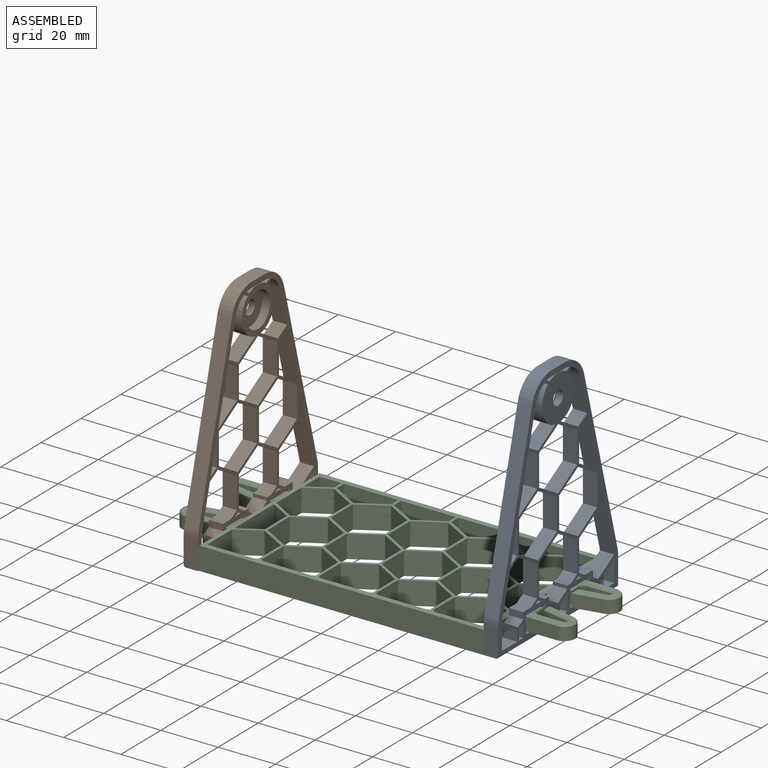
[diagram: assembled view]
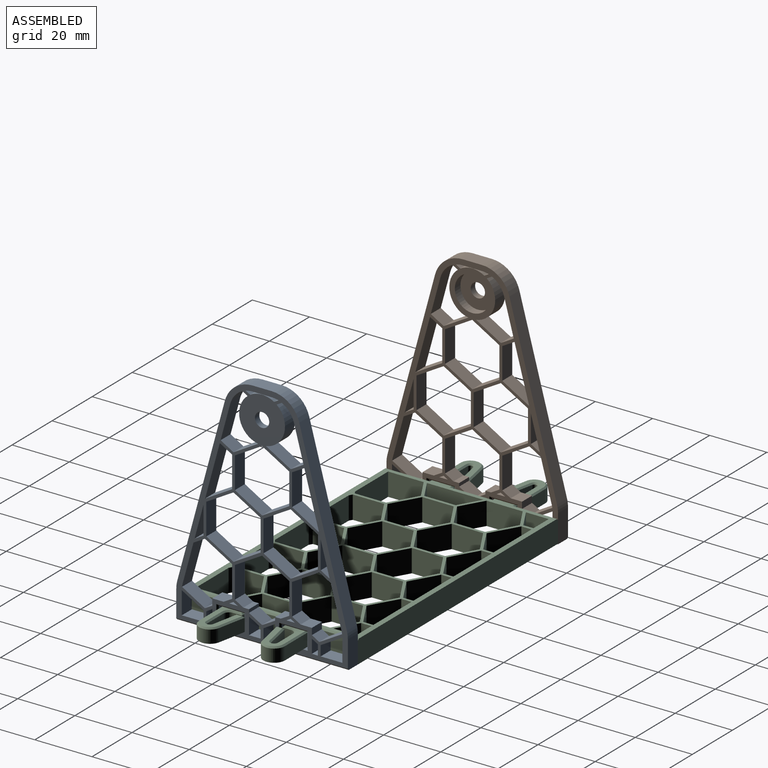
[diagram: assembled view, second angle]
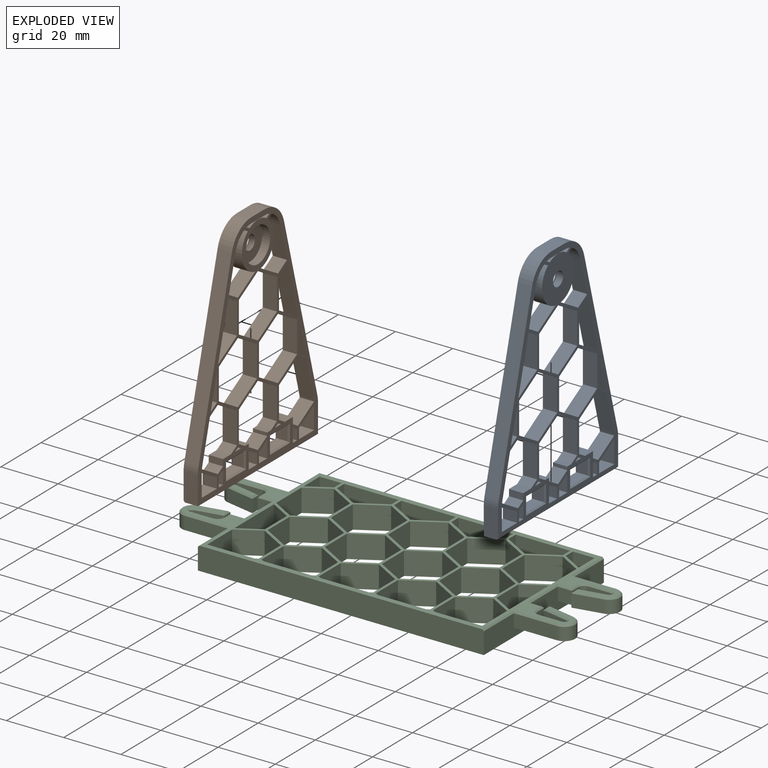
[diagram: exploded view]
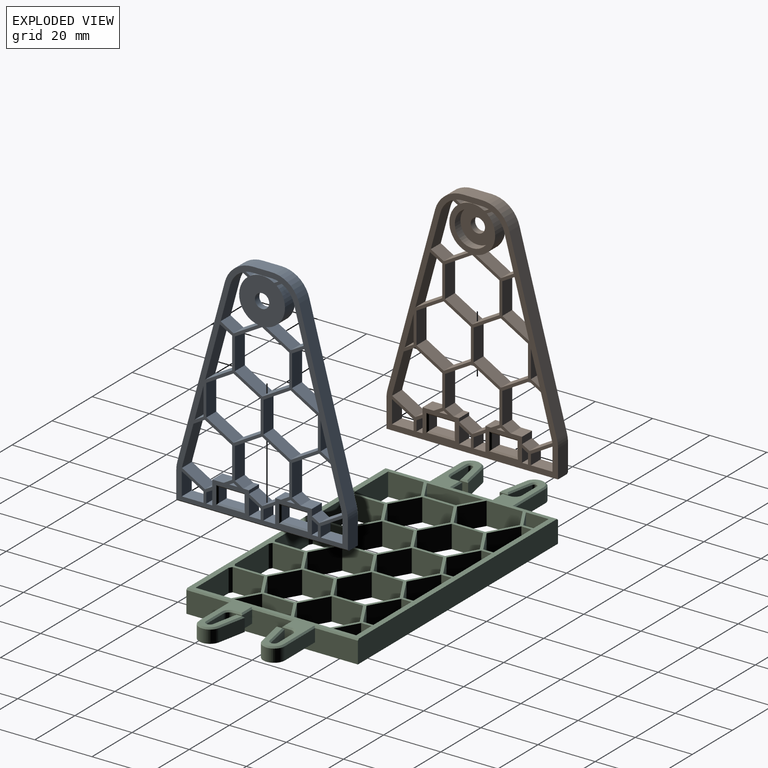
[diagram: exploded view, second angle]
ASSEMBLY  parts=3 mates=3
PART A: 154 faces, bbox 60x81.2x5 mm
  f0: plane 8.65x5mm, normal (0.5,0.87,0), area 49.9mm2, adj f24,f31,f35,f136
  f1: plane 5x1.82mm, normal (-0.5,-0.87,0), area 10.5mm2, adj f24,f41,f43,f136
  f2: plane 5x1.53mm, normal (-0.5,0.87,0), area 8.9mm2, adj f24,f37,f39,f136
  f3: plane 9.87x5mm, normal (1,0,0), area 49.2mm2, adj f8,f18,f24,f136,f137
  f4: plane 61.33x16.65mm, normal (0.97,0.26,0), area 317.8mm2, adj f18,f20,f24,f136
  f5: plane 6.71x5mm, normal (0,1,0), area 33.5mm2, adj f20,f21,f24,f136
  f6: plane 61.33x16.65mm, normal (-0.97,0.26,0), area 317.8mm2, adj f19,f21,f24,f136
  f7: plane 9.87x5mm, normal (-1,0,0), area 49.2mm2, adj f8,f19,f24,f136,f137
  f8: plane 60x4.5mm, normal (0,-1,0), area 270mm2, adj f3,f7,f24,f137
  f9: plane 9x4mm, normal (0,-1,0), area 36mm2, adj f10,f15,f143,f151
  f10: plane 5.2x4mm, normal (-1,0,0), area 20.8mm2, adj f9,f11,f145,f153
  f11: plane 9x4mm, normal (0,1,0), area 36mm2, adj f10,f15,f144,f152
  f12: plane 5.2x4mm, normal (1,0,0), area 20.8mm2, adj f13,f16,f139,f146
  f13: plane 9x4mm, normal (0,-1,0), area 36mm2, adj f12,f14,f138,f147
  f14: plane 5.2x4mm, normal (-1,0,0), area 20.8mm2, adj f13,f16,f140,f149
  f15: plane 5.2x4mm, normal (1,0,0), area 20.8mm2, adj f9,f11,f142,f150
  f16: plane 9x4mm, normal (0,1,0), area 36mm2, adj f12,f14,f141,f148
  f17: cylinder r=6.1mm len=12.2mm, axis (0,0,1), area 107.3mm2, adj f23,f24
  f18: cylinder r=10mm len=5mm, axis (0,0,-1), area 13.3mm2, adj f3,f4,f24,f136
  f19: cylinder r=10mm len=5mm, axis (0,0,1), area 13.3mm2, adj f6,f7,f24,f136
  f20: cylinder r=10mm len=9.65mm, axis (0,0,-1), area 65.3mm2, adj f4,f5,f24,f136
  f21: cylinder r=10mm len=9.65mm, axis (0,0,-1), area 65.3mm2, adj f5,f6,f24,f136
  f22: cylinder r=2.5mm len=5mm, axis (0,0,1), area 34.6mm2, adj f23,f136
  f23: plane 12.2x12.2mm, normal (0,0,1), area 97.3mm2, adj f17,f22
  f24: plane 81.2x60mm, normal (0,0,1), area 892.8mm2, adj f0,f1,f2,f3,f4,f5,f6,f7
  f25: plane 9.51x5.49mm, normal (-0.5,0.87,0), area 54.9mm2, adj f24,f26,f30,f136
  f26: plane 10.98x5mm, normal (-1,0,0), area 54.9mm2, adj f24,f25,f27,f136
  f27: plane 9.51x5.49mm, normal (-0.5,-0.87,0), area 54.9mm2, adj f24,f26,f28,f136
  f28: plane 9.51x5.49mm, normal (0.5,-0.87,0), area 54.9mm2, adj f24,f27,f29,f136
  f29: plane 10.98x5mm, normal (1,0,0), area 54.9mm2, adj f24,f28,f30,f136
  f30: plane 9.51x5.49mm, normal (0.5,0.87,0), area 54.9mm2, adj f24,f25,f29,f136
  f31: cylinder r=8.02mm len=14.12mm, axis (0,0,1), area 91.8mm2, adj f0,f24,f34,f136
  f32: plane 12.41x5mm, normal (-0.97,-0.26,0), area 64.3mm2, adj f24,f33,f35,f136
  f33: cylinder r=8.08mm len=5.15mm, axis (0,0,-1), area 34.5mm2, adj f24,f32,f34,f136
  f34: plane 5x1.82mm, normal (0.5,-0.87,0), area 10.5mm2, adj f24,f31,f33,f136
  f35: plane 5x4.52mm, normal (-0.5,0.87,0), area 26.1mm2, adj f0,f24,f32,f136
  f36: plane 6.71x5mm, normal (0,-1,0), area 33.5mm2, adj f24,f38,f39,f136
  f37: cylinder r=8.02mm len=8.38mm, axis (0,0,1), area 44.1mm2, adj f2,f24,f40,f136
  f38: cylinder r=8.08mm len=5mm, axis (0,0,-1), area 12mm2, adj f24,f36,f40,f136
  f39: cylinder r=8.08mm len=5mm, axis (0,0,-1), area 12mm2, adj f2,f24,f36,f136
  f40: plane 5x1.53mm, normal (0.5,0.87,0), area 8.9mm2, adj f24,f37,f38,f136
  f41: cylinder r=8.08mm len=5.15mm, axis (0,0,-1), area 34.5mm2, adj f1,f24,f42,f136
  f42: plane 12.41x5mm, normal (0.97,-0.26,0), area 64.3mm2, adj f24,f41,f44,f136
  f43: cylinder r=8.02mm len=14.12mm, axis (0,0,1), area 91.8mm2, adj f1,f24,f45,f136
  f44: plane 5x4.52mm, normal (0.5,0.87,0), area 26.1mm2, adj f24,f42,f45,f136
  f45: plane 8.65x5mm, normal (-0.5,0.87,0), area 49.9mm2, adj f24,f43,f44,f136
  f46: plane 5x2.29mm, normal (-1,0,0), area 11.5mm2, adj f24,f47,f51,f136
  f47: plane 5x3.97mm, normal (0,1,0), area 19.8mm2, adj f24,f46,f52,f136
  f48: cylinder r=8.08mm len=5mm, axis (0,0,1), area 5.2mm2, adj f24,f49,f50,f136
  f49: plane 14.01x5mm, normal (0.97,-0.26,0), area 72.6mm2, adj f24,f48,f53,f136
  f50: plane 8.01x5mm, normal (0.5,0.87,0), area 46.2mm2, adj f24,f48,f51,f136
  f51: plane 5x2.58mm, normal (-0.5,0.87,0), area 14.9mm2, adj f24,f46,f50,f136
  f52: plane 5x2.96mm, normal (-0.5,0.87,0), area 17.1mm2, adj f24,f47,f55,f136
  f53: plane 5x3.99mm, normal (0.5,-0.87,0), area 23.1mm2, adj f24,f49,f54,f136
  f54: plane 9.51x5.49mm, normal (-0.5,-0.87,0), area 54.9mm2, adj f24,f53,f55,f136
  f55: plane 10.98x5mm, normal (-1,0,0), area 54.9mm2, adj f24,f52,f54,f136
  f56: plane 7.95x5mm, normal (1,0,0), area 39.7mm2, adj f24,f57,f58,f136
  f57: plane 7.59x5mm, normal (0,1,0), area 37.9mm2, adj f24,f56,f60,f136
  f58: cylinder r=8.08mm len=5mm, axis (0,0,1), area 0mm2, adj f24,f56,f59,f136
  f59: plane 7.59x5mm, normal (-0.5,-0.87,0), area 43.8mm2, adj f24,f58,f60,f136
  f60: plane 5x3.57mm, normal (-1,0,0), area 17.9mm2, adj f24,f57,f59,f136
  f61: plane 5x2.29mm, normal (1,0,0), area 11.5mm2, adj f24,f62,f66,f136
  f62: plane 5x3.97mm, normal (0,1,0), area 19.8mm2, adj f24,f61,f68,f136
  f63: cylinder r=8.08mm len=5mm, axis (0,0,-1), area 5.2mm2, adj f24,f64,f65,f136
  f64: plane 14.01x5mm, normal (-0.97,-0.26,0), area 72.6mm2, adj f24,f63,f67,f136
  f65: plane 8.01x5mm, normal (-0.5,0.87,0), area 46.2mm2, adj f24,f63,f66,f136
  f66: plane 5x2.58mm, normal (0.5,0.87,0), area 14.9mm2, adj f24,f61,f65,f136
  f67: plane 5x3.99mm, normal (-0.5,-0.87,0), area 23.1mm2, adj f24,f64,f70,f136
  f68: plane 5x2.96mm, normal (0.5,0.87,0), area 17.1mm2, adj f24,f62,f69,f136
  f69: plane 10.98x5mm, normal (1,0,0), area 54.9mm2, adj f24,f68,f70,f136
  f70: plane 9.51x5.49mm, normal (0.5,-0.87,0), area 54.9mm2, adj f24,f67,f69,f136
  f71: plane 7.95x5mm, normal (-1,0,0), area 39.7mm2, adj f24,f72,f73,f136
  f72: cylinder r=8.08mm len=5mm, axis (0,0,-1), area 0mm2, adj f24,f71,f74,f136
  f73: plane 7.59x5mm, normal (0,1,0), area 37.9mm2, adj f24,f71,f75,f136
  f74: plane 7.59x5mm, normal (0.5,-0.87,0), area 43.8mm2, adj f24,f72,f75,f136
  f75: plane 5x3.57mm, normal (1,0,0), area 17.9mm2, adj f24,f73,f74,f136
  f76: plane 5x2.09mm, normal (0,1,0), area 10.4mm2, adj f24,f77,f78,f136
  f77: plane 5x4.78mm, normal (-1,0,0), area 23.9mm2, adj f24,f76,f79,f136
  f78: plane 5x3.57mm, normal (1,0,0), area 17.9mm2, adj f24,f76,f79,f136
  f79: plane 5x2.09mm, normal (0.5,-0.87,0), area 12.1mm2, adj f24,f77,f78,f136
  f80: plane 5x2.09mm, normal (-0.5,-0.87,0), area 12.1mm2, adj f24,f81,f82,f136
  f81: plane 5x3.57mm, normal (-1,0,0), area 17.9mm2, adj f24,f80,f83,f136
  f82: plane 5x4.78mm, normal (1,0,0), area 23.9mm2, adj f24,f80,f83,f136
  f83: plane 5x2.09mm, normal (0,1,0), area 10.4mm2, adj f24,f81,f82,f136
  f84: plane 5x2.96mm, normal (-0.5,0.87,0), area 17.1mm2, adj f24,f89,f92,f136
  f85: plane 5x2.96mm, normal (0.5,0.87,0), area 17.1mm2, adj f24,f86,f91,f136
  f86: plane 10.98x5mm, normal (1,0,0), area 54.9mm2, adj f24,f85,f87,f136
  f87: plane 9.51x5.49mm, normal (0.5,-0.87,0), area 54.9mm2, adj f24,f86,f88,f136
  f88: plane 9.51x5.49mm, normal (-0.5,-0.87,0), area 54.9mm2, adj f24,f87,f89,f136
  f89: plane 10.98x5mm, normal (-1,0,0), area 54.9mm2, adj f24,f84,f88,f136
  f90: plane 5x1.14mm, normal (1,0,0), area 5.7mm2, adj f24,f91,f95,f136
  f91: plane 5x1.97mm, normal (0,1,0), area 9.8mm2, adj f24,f85,f90,f136
  f92: plane 5x1.97mm, normal (0,1,0), area 9.8mm2, adj f24,f84,f93,f136
  f93: plane 5x1.14mm, normal (-1,0,0), area 5.7mm2, adj f24,f92,f94,f136
  f94: plane 5x4.58mm, normal (-0.5,0.87,0), area 26.4mm2, adj f24,f93,f95,f136
  f95: plane 5x4.58mm, normal (0.5,0.87,0), area 26.4mm2, adj f24,f90,f94,f136
  f96: plane 5x1.49mm, normal (-0.5,-0.87,0), area 8.6mm2, adj f24,f97,f98,f136
  f97: plane 5x1.49mm, normal (0.5,-0.87,0), area 8.6mm2, adj f24,f96,f98,f136
  f98: plane 5x2.98mm, normal (0,1,0), area 14.9mm2, adj f24,f96,f97,f136
  f99: plane 5.93x5mm, normal (-1,0,0), area 29.7mm2, adj f24,f100,f101,f136
  f100: plane 5x4.09mm, normal (0,1,0), area 20.4mm2, adj f24,f99,f102,f136
  f101: plane 5x4.09mm, normal (0.5,-0.87,0), area 23.6mm2, adj f24,f99,f102,f136
  f102: plane 5x3.57mm, normal (1,0,0), area 17.9mm2, adj f24,f100,f101,f136
  f103: plane 5x4.09mm, normal (-0.5,-0.87,0), area 23.6mm2, adj f24,f104,f105,f136
  f104: plane 5x3.57mm, normal (-1,0,0), area 17.9mm2, adj f24,f103,f106,f136
  f105: plane 5.93x5mm, normal (1,0,0), area 29.7mm2, adj f24,f103,f106,f136
  f106: plane 5x4.09mm, normal (0,1,0), area 20.4mm2, adj f24,f104,f105,f136
  f107: plane 5x2.98mm, normal (0,1,0), area 14.9mm2, adj f24,f108,f109,f136
  f108: plane 5x1.49mm, normal (0.5,-0.87,0), area 8.6mm2, adj f24,f107,f109,f136
  f109: plane 5x1.49mm, normal (-0.5,-0.87,0), area 8.6mm2, adj f24,f107,f108,f136
  f110: plane 11.57x5mm, normal (0.97,-0.26,0), area 59.9mm2, adj f24,f111,f112,f136
  f111: plane 9.76x5mm, normal (-1,0,0), area 48.8mm2, adj f24,f110,f112,f136
  f112: plane 5x3.14mm, normal (-0.5,0.87,0), area 18.1mm2, adj f24,f110,f111,f136
  f113: plane 18.9x5.13mm, normal (0.97,-0.26,0), area 97.9mm2, adj f24,f114,f115,f136
  f114: plane 9.42x5.44mm, normal (-0.5,0.87,0), area 54.4mm2, adj f24,f113,f116,f136
  f115: plane 5x4.29mm, normal (-0.5,-0.87,0), area 24.8mm2, adj f24,f113,f116,f136
  f116: plane 10.98x5mm, normal (-1,0,0), area 54.9mm2, adj f24,f114,f115,f136
  f117: plane 18.9x5.13mm, normal (-0.97,-0.26,0), area 97.9mm2, adj f24,f118,f119,f136
  f118: plane 5x4.29mm, normal (0.5,-0.87,0), area 24.8mm2, adj f24,f117,f120,f136
  f119: plane 9.42x5.44mm, normal (0.5,0.87,0), area 54.4mm2, adj f24,f117,f120,f136
  f120: plane 10.98x5mm, normal (1,0,0), area 54.9mm2, adj f24,f118,f119,f136
  f121: plane 11.57x5mm, normal (-0.97,-0.26,0), area 59.9mm2, adj f24,f122,f123,f136
  f122: plane 5x3.14mm, normal (0.5,0.87,0), area 18.1mm2, adj f24,f121,f123,f136
  f123: plane 9.76x5mm, normal (1,0,0), area 48.8mm2, adj f24,f121,f122,f136
  f124: plane 9.51x5.49mm, normal (0.5,0.87,0), area 54.9mm2, adj f24,f125,f129,f136
  f125: plane 10.98x5mm, normal (1,0,0), area 54.9mm2, adj f24,f124,f126,f136
  f126: plane 9.51x5.49mm, normal (0.5,-0.87,0), area 54.9mm2, adj f24,f125,f127,f136
  f127: plane 9.51x5.49mm, normal (-0.5,-0.87,0), area 54.9mm2, adj f24,f126,f128,f136
  f128: plane 10.98x5mm, normal (-1,0,0), area 54.9mm2, adj f24,f127,f129,f136
  f129: plane 9.51x5.49mm, normal (-0.5,0.87,0), area 54.9mm2, adj f24,f124,f128,f136
  f130: plane 9.51x5.49mm, normal (0.5,0.87,0), area 54.9mm2, adj f24,f131,f135,f136
  f131: plane 10.98x5mm, normal (1,0,0), area 54.9mm2, adj f24,f130,f132,f136
  f132: plane 9.51x5.49mm, normal (0.5,-0.87,0), area 54.9mm2, adj f24,f131,f133,f136
  f133: plane 9.51x5.49mm, normal (-0.5,-0.87,0), area 54.9mm2, adj f24,f132,f134,f136
  f134: plane 10.98x5mm, normal (-1,0,0), area 54.9mm2, adj f24,f133,f135,f136
  f135: plane 9.51x5.49mm, normal (-0.5,0.87,0), area 54.9mm2, adj f24,f130,f134,f136
  f136: plane 80.7x60mm, normal (0,0,-1), area 960mm2, adj f0,f1,f2,f3,f4,f5,f6,f7
  f137: plane 60x0.5mm, normal (0,-0.71,-0.71), area 42.4mm2, adj f3,f7,f8,f136
  f138: plane 10x0.5mm, normal (0,-0.71,0.71), area 6.7mm2, adj f13,f24,f139,f140
  f139: plane 6.2x0.5mm, normal (0.71,0,0.71), area 4mm2, adj f12,f24,f138,f141
  f140: plane 6.2x0.5mm, normal (-0.71,0,0.71), area 4mm2, adj f14,f24,f138,f141
  f141: plane 10x0.5mm, normal (0,0.71,0.71), area 6.7mm2, adj f16,f24,f139,f140
  f142: plane 6.2x0.5mm, normal (0.71,0,0.71), area 4mm2, adj f15,f24,f143,f144
  f143: plane 10x0.5mm, normal (0,-0.71,0.71), area 6.7mm2, adj f9,f24,f142,f145
  f144: plane 10x0.5mm, normal (0,0.71,0.71), area 6.7mm2, adj f11,f24,f142,f145
  f145: plane 6.2x0.5mm, normal (-0.71,0,0.71), area 4mm2, adj f10,f24,f143,f144
  f146: plane 6.2x0.5mm, normal (0.71,0,-0.71), area 4mm2, adj f12,f136,f147,f148
  f147: plane 10x0.5mm, normal (0,-0.71,-0.71), area 6.7mm2, adj f13,f136,f146,f149
  f148: plane 10x0.5mm, normal (0,0.71,-0.71), area 6.7mm2, adj f16,f136,f146,f149
  f149: plane 6.2x0.5mm, normal (-0.71,0,-0.71), area 4mm2, adj f14,f136,f147,f148
  f150: plane 6.2x0.5mm, normal (0.71,0,-0.71), area 4mm2, adj f15,f136,f151,f152
  f151: plane 10x0.5mm, normal (0,-0.71,-0.71), area 6.7mm2, adj f9,f136,f150,f153
  f152: plane 10x0.5mm, normal (0,0.71,-0.71), area 6.7mm2, adj f11,f136,f150,f153
  f153: plane 6.2x0.5mm, normal (-0.71,0,-0.71), area 4mm2, adj f10,f136,f151,f152
PART B: same geometry as A
PART C: 219 faces, bbox 137.6x60x8 mm
  f0: cylinder r=2mm len=4.5mm, axis (0,0,-1), area 14.1mm2, adj f1,f4,f11,f212
  f1: plane 8x4.5mm, normal (0,1,0), area 36mm2, adj f0,f2,f11,f214
  f2: cylinder r=0.91mm len=4.5mm, axis (0,0,-1), area 12mm2, adj f1,f3,f11,f216
  f3: plane 9.38x4.5mm, normal (0.2,-0.98,0), area 43mm2, adj f2,f5,f11,f218
  f4: plane 4.5x3.12mm, normal (-1,0,0), area 14mm2, adj f0,f9,f11,f210
  f5: plane 4.5x2.94mm, normal (1,0,0), area 13.2mm2, adj f3,f6,f11,f217
  f6: plane 9.95x4.5mm, normal (-0.2,0.98,0), area 45.7mm2, adj f5,f7,f11,f215
  f7: cylinder r=3.79mm len=7.5mm, axis (0,0,-1), area 50.2mm2, adj f6,f8,f11,f213
  f8: plane 15x4.5mm, normal (0,-1,0), area 67.5mm2, adj f7,f11,f171,f211
  f9: plane 5x4.5mm, normal (0,1,0), area 22.5mm2, adj f4,f11,f171,f208
  f10: plane 136.57x60mm, normal (0,0,-1), area 1371.7mm2, adj f45,f46,f47,f48,f49,f50,f51,f52
  f11: plane 18.79x9.5mm, normal (0,0,1), area 117.9mm2, adj f0,f1,f2,f3,f4,f5,f6,f7
  f12: plane 9.95x4.5mm, normal (-0.2,-0.98,0), area 45.7mm2, adj f13,f16,f22,f199
  f13: plane 4.5x2.94mm, normal (1,0,0), area 13.2mm2, adj f12,f17,f22,f200
  f14: plane 15x4.5mm, normal (0,1,0), area 67.5mm2, adj f16,f22,f171,f197
  f15: plane 5x4.5mm, normal (0,-1,0), area 22.5mm2, adj f21,f22,f171,f206
  f16: cylinder r=3.79mm len=7.5mm, axis (0,0,-1), area 50.2mm2, adj f12,f14,f22,f198
  f17: plane 9.38x4.5mm, normal (0.2,0.98,0), area 43mm2, adj f13,f18,f22,f201
  f18: cylinder r=0.91mm len=4.5mm, axis (0,0,-1), area 12mm2, adj f17,f19,f22,f202
  f19: plane 8x4.5mm, normal (0,-1,0), area 36mm2, adj f18,f20,f22,f203
  f20: cylinder r=2mm len=4.5mm, axis (0,0,-1), area 14.1mm2, adj f19,f21,f22,f204
  f21: plane 4.5x3.12mm, normal (-1,0,0), area 14mm2, adj f15,f20,f22,f205
  f22: plane 18.79x9.5mm, normal (0,0,1), area 117.9mm2, adj f12,f13,f14,f15,f16,f17,f18,f19
  f23: plane 9.95x4.5mm, normal (0.2,0.98,0), area 45.7mm2, adj f24,f27,f33,f176
  f24: plane 4.5x2.94mm, normal (-1,0,0), area 13.2mm2, adj f23,f28,f33,f177
  f25: plane 15x4.5mm, normal (0,-1,0), area 67.5mm2, adj f27,f33,f172,f174
  f26: plane 5x4.5mm, normal (0,1,0), area 22.5mm2, adj f32,f33,f172,f183
  f27: cylinder r=3.79mm len=7.5mm, axis (0,0,-1), area 50.2mm2, adj f23,f25,f33,f175
  f28: plane 9.38x4.5mm, normal (-0.2,-0.98,0), area 43mm2, adj f24,f29,f33,f178
  f29: cylinder r=0.91mm len=4.5mm, axis (0,0,-1), area 12mm2, adj f28,f30,f33,f179
  f30: plane 8x4.5mm, normal (0,1,0), area 36mm2, adj f29,f31,f33,f180
  f31: cylinder r=2mm len=4.5mm, axis (0,0,-1), area 14.1mm2, adj f30,f32,f33,f181
  f32: plane 4.5x3.12mm, normal (1,0,0), area 14mm2, adj f26,f31,f33,f182
  f33: plane 18.79x9.5mm, normal (0,0,1), area 117.9mm2, adj f23,f24,f25,f26,f27,f28,f29,f30
  f34: plane 9.38x4.5mm, normal (-0.2,0.98,0), area 43mm2, adj f35,f40,f44,f195
  f35: cylinder r=0.91mm len=4.5mm, axis (0,0,-1), area 12mm2, adj f34,f36,f44,f193
  f36: plane 8x4.5mm, normal (0,-1,0), area 36mm2, adj f35,f37,f44,f191
  f37: cylinder r=2mm len=4.5mm, axis (0,0,-1), area 14.1mm2, adj f36,f38,f44,f189
  f38: plane 4.5x3.12mm, normal (1,0,0), area 14mm2, adj f37,f43,f44,f187
  f39: plane 9.95x4.5mm, normal (0.2,-0.98,0), area 45.7mm2, adj f40,f41,f44,f192
  f40: plane 4.5x2.94mm, normal (-1,0,0), area 13.2mm2, adj f34,f39,f44,f194
  f41: cylinder r=3.79mm len=7.5mm, axis (0,0,-1), area 50.2mm2, adj f39,f42,f44,f190
  f42: plane 15x4.5mm, normal (0,1,0), area 67.5mm2, adj f41,f44,f172,f188
  f43: plane 5x4.5mm, normal (0,-1,0), area 22.5mm2, adj f38,f44,f172,f185
  f44: plane 18.79x9.5mm, normal (0,0,1), area 117.9mm2, adj f34,f35,f36,f37,f38,f39,f40,f41
  f45: plane 100x8mm, normal (0,1,0), area 799.8mm2, adj f10,f53,f171,f172,f186,f196
  f46: plane 8x1.09mm, normal (-0.5,-0.87,0), area 10mm2, adj f10,f49,f52,f53
  f47: plane 8x1.09mm, normal (0.5,-0.87,0), area 10mm2, adj f10,f50,f52,f53
  f48: plane 9.51x8mm, normal (-0.5,0.87,0), area 87.8mm2, adj f10,f49,f51,f53
  f49: plane 10.98x8mm, normal (-1,0,0), area 87.8mm2, adj f10,f46,f48,f53
  f50: plane 10.98x8mm, normal (1,0,0), area 87.8mm2, adj f10,f47,f51,f53
  f51: plane 9.51x8mm, normal (0.5,0.87,0), area 87.8mm2, adj f10,f48,f50,f53
  f52: plane 16.84x8mm, normal (0,-1,0), area 134.8mm2, adj f10,f46,f47,f53
  f53: plane 100x60mm, normal (0,0,1), area 1085.1mm2, adj f45,f46,f47,f48,f49,f50,f51,f52
  f54: plane 8x7.59mm, normal (0,1,0), area 60.7mm2, adj f10,f53,f55,f57
  f55: plane 8x7.95mm, normal (-1,0,0), area 63.6mm2, adj f10,f53,f54,f56
  f56: plane 8x7.59mm, normal (0.5,-0.87,0), area 70.1mm2, adj f10,f53,f55,f57
  f57: plane 8x3.57mm, normal (1,0,0), area 28.6mm2, adj f10,f53,f54,f56
  f58: plane 12.63x8mm, normal (-1,0,0), area 101.1mm2, adj f10,f53,f59,f60
  f59: plane 8.08x8mm, normal (-0.5,-0.87,0), area 74.6mm2, adj f10,f53,f58,f63
  f60: plane 8.08x8mm, normal (-0.5,0.87,0), area 74.6mm2, adj f10,f53,f58,f61
  f61: plane 9.51x8mm, normal (0.5,0.87,0), area 87.8mm2, adj f10,f53,f60,f62
  f62: plane 10.98x8mm, normal (1,0,0), area 87.8mm2, adj f10,f53,f61,f63
  f63: plane 9.51x8mm, normal (0.5,-0.87,0), area 87.8mm2, adj f10,f53,f59,f62
  f64: plane 12.43x8mm, normal (-1,0,0), area 99.5mm2, adj f10,f53,f65,f66
  f65: plane 16.5x8mm, normal (0,-1,0), area 132mm2, adj f10,f53,f64,f69
  f66: plane 8.08x8mm, normal (-0.5,0.87,0), area 74.6mm2, adj f10,f53,f64,f67
  f67: plane 9.51x8mm, normal (0.5,0.87,0), area 87.8mm2, adj f10,f53,f66,f68
  f68: plane 10.98x8mm, normal (1,0,0), area 87.8mm2, adj f10,f53,f67,f69
  f69: plane 8x1.09mm, normal (0.5,-0.87,0), area 10mm2, adj f10,f53,f65,f68
  f70: plane 19.75x8mm, normal (-1,0,0), area 158mm2, adj f10,f53,f71,f72
  f71: plane 8x7.59mm, normal (0.5,-0.87,0), area 70.1mm2, adj f10,f53,f70,f73
  f72: plane 8x7.59mm, normal (0.5,0.87,0), area 70.1mm2, adj f10,f53,f70,f73
  f73: plane 10.98x8mm, normal (1,0,0), area 87.8mm2, adj f10,f53,f71,f72
  f74: plane 8x7.59mm, normal (-0.5,-0.87,0), area 70.1mm2, adj f10,f53,f75,f76
  f75: plane 8x3.57mm, normal (-1,0,0), area 28.6mm2, adj f10,f53,f74,f77
  f76: plane 8x7.95mm, normal (1,0,0), area 63.6mm2, adj f10,f53,f74,f77
  f77: plane 8x7.59mm, normal (0,1,0), area 60.7mm2, adj f10,f53,f75,f76
  f78: plane 9.51x8mm, normal (0.5,0.87,0), area 87.8mm2, adj f10,f53,f79,f83
  f79: plane 10.98x8mm, normal (1,0,0), area 87.8mm2, adj f10,f53,f78,f80
  f80: plane 9.51x8mm, normal (0.5,-0.87,0), area 87.8mm2, adj f10,f53,f79,f81
  f81: plane 9.51x8mm, normal (-0.5,-0.87,0), area 87.8mm2, adj f10,f53,f80,f82
  f82: plane 10.98x8mm, normal (-1,0,0), area 87.8mm2, adj f10,f53,f81,f83
  f83: plane 9.51x8mm, normal (-0.5,0.87,0), area 87.8mm2, adj f10,f53,f78,f82
  f84: plane 8x7.59mm, normal (-0.5,-0.87,0), area 70.1mm2, adj f10,f53,f85,f87
  f85: plane 10.98x8mm, normal (-1,0,0), area 87.8mm2, adj f10,f53,f84,f86
  f86: plane 8x7.59mm, normal (-0.5,0.87,0), area 70.1mm2, adj f10,f53,f85,f87
  f87: plane 19.75x8mm, normal (1,0,0), area 158mm2, adj f10,f53,f84,f86
  f88: plane 9.51x8mm, normal (0.5,0.87,0), area 87.8mm2, adj f10,f53,f89,f93
  f89: plane 10.98x8mm, normal (1,0,0), area 87.8mm2, adj f10,f53,f88,f90
  f90: plane 9.51x8mm, normal (0.5,-0.87,0), area 87.8mm2, adj f10,f53,f89,f91
  f91: plane 9.51x8mm, normal (-0.5,-0.87,0), area 87.8mm2, adj f10,f53,f90,f92
  f92: plane 10.98x8mm, normal (-1,0,0), area 87.8mm2, adj f10,f53,f91,f93
  f93: plane 9.51x8mm, normal (-0.5,0.87,0), area 87.8mm2, adj f10,f53,f88,f92
  f94: plane 9.51x8mm, normal (0.5,0.87,0), area 87.8mm2, adj f10,f53,f95,f99
  f95: plane 10.98x8mm, normal (1,0,0), area 87.8mm2, adj f10,f53,f94,f96
  f96: plane 9.51x8mm, normal (0.5,-0.87,0), area 87.8mm2, adj f10,f53,f95,f97
  f97: plane 9.51x8mm, normal (-0.5,-0.87,0), area 87.8mm2, adj f10,f53,f96,f98
  f98: plane 10.98x8mm, normal (-1,0,0), area 87.8mm2, adj f10,f53,f97,f99
  f99: plane 9.51x8mm, normal (-0.5,0.87,0), area 87.8mm2, adj f10,f53,f94,f98
  f100: plane 9.51x8mm, normal (0.5,0.87,0), area 87.8mm2, adj f10,f53,f101,f105
  f101: plane 10.98x8mm, normal (1,0,0), area 87.8mm2, adj f10,f53,f100,f102
  f102: plane 9.51x8mm, normal (0.5,-0.87,0), area 87.8mm2, adj f10,f53,f101,f103
  f103: plane 9.51x8mm, normal (-0.5,-0.87,0), area 87.8mm2, adj f10,f53,f102,f104
  f104: plane 10.98x8mm, normal (-1,0,0), area 87.8mm2, adj f10,f53,f103,f105
  f105: plane 9.51x8mm, normal (-0.5,0.87,0), area 87.8mm2, adj f10,f53,f100,f104
  f106: plane 9.51x8mm, normal (0.5,0.87,0), area 87.8mm2, adj f10,f53,f107,f111
  f107: plane 10.98x8mm, normal (1,0,0), area 87.8mm2, adj f10,f53,f106,f108
  f108: plane 9.51x8mm, normal (0.5,-0.87,0), area 87.8mm2, adj f10,f53,f107,f109
  f109: plane 9.51x8mm, normal (-0.5,-0.87,0), area 87.8mm2, adj f10,f53,f108,f110
  f110: plane 10.98x8mm, normal (-1,0,0), area 87.8mm2, adj f10,f53,f109,f111
  f111: plane 9.51x8mm, normal (-0.5,0.87,0), area 87.8mm2, adj f10,f53,f106,f110
  f112: plane 9.51x8mm, normal (0.5,-0.87,0), area 87.8mm2, adj f10,f53,f113,f114
  f113: plane 9.51x8mm, normal (-0.5,-0.87,0), area 87.8mm2, adj f10,f53,f112,f115
  f114: plane 8x3.57mm, normal (1,0,0), area 28.6mm2, adj f10,f53,f112,f116
  f115: plane 8x3.57mm, normal (-1,0,0), area 28.6mm2, adj f10,f53,f113,f116
  f116: plane 19.02x8mm, normal (0,1,0), area 152.2mm2, adj f10,f53,f114,f115
  f117: plane 9.51x8mm, normal (0.5,-0.87,0), area 87.8mm2, adj f10,f53,f118,f119
  f118: plane 9.51x8mm, normal (-0.5,-0.87,0), area 87.8mm2, adj f10,f53,f117,f120
  f119: plane 8x3.57mm, normal (1,0,0), area 28.6mm2, adj f10,f53,f117,f121
  f120: plane 8x3.57mm, normal (-1,0,0), area 28.6mm2, adj f10,f53,f118,f121
  f121: plane 19.02x8mm, normal (0,1,0), area 152.2mm2, adj f10,f53,f119,f120
  f122: plane 9.51x8mm, normal (0.5,-0.87,0), area 87.8mm2, adj f10,f53,f123,f124
  f123: plane 9.51x8mm, normal (-0.5,-0.87,0), area 87.8mm2, adj f10,f53,f122,f125
  f124: plane 8x3.57mm, normal (1,0,0), area 28.6mm2, adj f10,f53,f122,f126
  f125: plane 8x3.57mm, normal (-1,0,0), area 28.6mm2, adj f10,f53,f123,f126
  f126: plane 19.02x8mm, normal (0,1,0), area 152.2mm2, adj f10,f53,f124,f125
  f127: plane 9.51x8mm, normal (0.5,-0.87,0), area 87.8mm2, adj f10,f53,f128,f129
  f128: plane 9.51x8mm, normal (-0.5,-0.87,0), area 87.8mm2, adj f10,f53,f127,f130
  f129: plane 8x3.57mm, normal (1,0,0), area 28.6mm2, adj f10,f53,f127,f131
  f130: plane 8x3.57mm, normal (-1,0,0), area 28.6mm2, adj f10,f53,f128,f131
  f131: plane 19.02x8mm, normal (0,1,0), area 152.2mm2, adj f10,f53,f129,f130
  f132: plane 9.51x8mm, normal (0.5,0.87,0), area 87.8mm2, adj f10,f53,f133,f137
  f133: plane 10.98x8mm, normal (1,0,0), area 87.8mm2, adj f10,f53,f132,f134
  f134: plane 9.51x8mm, normal (0.5,-0.87,0), area 87.8mm2, adj f10,f53,f133,f135
  f135: plane 9.51x8mm, normal (-0.5,-0.87,0), area 87.8mm2, adj f10,f53,f134,f136
  f136: plane 10.98x8mm, normal (-1,0,0), area 87.8mm2, adj f10,f53,f135,f137
  f137: plane 9.51x8mm, normal (-0.5,0.87,0), area 87.8mm2, adj f10,f53,f132,f136
  f138: plane 9.51x8mm, normal (0.5,0.87,0), area 87.8mm2, adj f10,f53,f139,f143
  f139: plane 10.98x8mm, normal (1,0,0), area 87.8mm2, adj f10,f53,f138,f140
  f140: plane 9.51x8mm, normal (0.5,-0.87,0), area 87.8mm2, adj f10,f53,f139,f141
  f141: plane 9.51x8mm, normal (-0.5,-0.87,0), area 87.8mm2, adj f10,f53,f140,f142
  f142: plane 10.98x8mm, normal (-1,0,0), area 87.8mm2, adj f10,f53,f141,f143
  f143: plane 9.51x8mm, normal (-0.5,0.87,0), area 87.8mm2, adj f10,f53,f138,f142
  f144: plane 8.08x8mm, normal (0.5,0.87,0), area 74.6mm2, adj f10,f53,f148,f149
  f145: plane 8.08x8mm, normal (0.5,-0.87,0), area 74.6mm2, adj f10,f53,f146,f149
  f146: plane 9.51x8mm, normal (-0.5,-0.87,0), area 87.8mm2, adj f10,f53,f145,f147
  f147: plane 10.98x8mm, normal (-1,0,0), area 87.8mm2, adj f10,f53,f146,f148
  f148: plane 9.51x8mm, normal (-0.5,0.87,0), area 87.8mm2, adj f10,f53,f144,f147
  f149: plane 12.63x8mm, normal (1,0,0), area 101.1mm2, adj f10,f53,f144,f145
  f150: plane 8.08x8mm, normal (0.5,0.87,0), area 74.6mm2, adj f10,f53,f152,f155
  f151: plane 10.98x8mm, normal (-1,0,0), area 87.8mm2, adj f10,f53,f152,f153
  f152: plane 9.51x8mm, normal (-0.5,0.87,0), area 87.8mm2, adj f10,f53,f150,f151
  f153: plane 8x1.09mm, normal (-0.5,-0.87,0), area 10mm2, adj f10,f53,f151,f154
  f154: plane 16.5x8mm, normal (0,-1,0), area 132mm2, adj f10,f53,f153,f155
  f155: plane 12.43x8mm, normal (1,0,0), area 99.5mm2, adj f10,f53,f150,f154
  f156: plane 9.51x8mm, normal (0.5,0.87,0), area 87.8mm2, adj f10,f53,f157,f159
  f157: plane 10.98x8mm, normal (1,0,0), area 87.8mm2, adj f10,f53,f156,f160
  f158: plane 10.98x8mm, normal (-1,0,0), area 87.8mm2, adj f10,f53,f159,f161
  f159: plane 9.51x8mm, normal (-0.5,0.87,0), area 87.8mm2, adj f10,f53,f156,f158
  f160: plane 8x1.09mm, normal (0.5,-0.87,0), area 10mm2, adj f10,f53,f157,f162
  f161: plane 8x1.09mm, normal (-0.5,-0.87,0), area 10mm2, adj f10,f53,f158,f162
  f162: plane 16.84x8mm, normal (0,-1,0), area 134.8mm2, adj f10,f53,f160,f161
  f163: plane 9.51x8mm, normal (0.5,0.87,0), area 87.8mm2, adj f10,f53,f164,f166
  f164: plane 10.98x8mm, normal (1,0,0), area 87.8mm2, adj f10,f53,f163,f167
  f165: plane 10.98x8mm, normal (-1,0,0), area 87.8mm2, adj f10,f53,f166,f168
  f166: plane 9.51x8mm, normal (-0.5,0.87,0), area 87.8mm2, adj f10,f53,f163,f165
  f167: plane 8x1.09mm, normal (0.5,-0.87,0), area 10mm2, adj f10,f53,f164,f169
  f168: plane 8x1.09mm, normal (-0.5,-0.87,0), area 10mm2, adj f10,f53,f165,f169
  f169: plane 16.84x8mm, normal (0,-1,0), area 134.8mm2, adj f10,f53,f167,f168
  f170: plane 100x8mm, normal (0,-1,0), area 799.8mm2, adj f10,f53,f171,f172,f173,f209
  f171: plane 60x7.5mm, normal (-1,0,0), area 378mm2, adj f8,f9,f11,f14,f15,f22,f45,f53
  f172: plane 60x7.5mm, normal (1,0,0), area 378mm2, adj f25,f26,f33,f42,f43,f44,f45,f53
  f173: plane 15.5x0.5mm, normal (0.71,0,-0.71), area 10.8mm2, adj f10,f170,f172,f174
  f174: plane 15.5x0.5mm, normal (0,-0.71,-0.71), area 10.8mm2, adj f10,f25,f173,f175
  f175: cone r=3.79mm half-angle=45deg, axis (0,0,1), area 7.4mm2, adj f10,f27,f174,f176
  f176: plane 9.95x2.49mm, normal (0.14,0.69,-0.71), area 7mm2, adj f10,f23,f175,f177
  f177: plane 2.94x0.5mm, normal (-0.71,0,-0.71), area 1.7mm2, adj f10,f24,f176,f178
  f178: plane 9.48x2.3mm, normal (-0.14,-0.69,-0.71), area 6.6mm2, adj f10,f28,f177,f179
  f179: cone r=1.41mm half-angle=45deg, axis (0,0,-1), area 2.4mm2, adj f10,f29,f178,f180
  f180: plane 8x0.5mm, normal (0,0.71,-0.71), area 5.7mm2, adj f10,f30,f179,f181
  f181: cone r=2.5mm half-angle=45deg, axis (0,0,-1), area 2.5mm2, adj f10,f31,f180,f182
  f182: plane 3.12x0.5mm, normal (0.71,0,-0.71), area 2mm2, adj f10,f32,f181,f183
  f183: plane 5.5x0.5mm, normal (0,0.71,-0.71), area 3.5mm2, adj f10,f26,f182,f184
  f184: plane 15x0.5mm, normal (0.71,0,-0.71), area 10.3mm2, adj f10,f172,f183,f185
  f185: plane 5.5x0.5mm, normal (0,-0.71,-0.71), area 3.5mm2, adj f10,f43,f184,f187
  f186: plane 15.5x0.5mm, normal (0.71,0,-0.71), area 10.8mm2, adj f10,f45,f172,f188
  f187: plane 3.12x0.5mm, normal (0.71,0,-0.71), area 2mm2, adj f10,f38,f185,f189
  f188: plane 15.5x0.5mm, normal (0,0.71,-0.71), area 10.8mm2, adj f10,f42,f186,f190
  f189: cone r=2mm half-angle=45deg, axis (0,0,-1), area 2.5mm2, adj f10,f37,f187,f191
  f190: cone r=3.29mm half-angle=45deg, axis (0,0,1), area 7.4mm2, adj f10,f41,f188,f192
  f191: plane 8x0.5mm, normal (0,-0.71,-0.71), area 5.7mm2, adj f10,f36,f189,f193
  f192: plane 9.95x2.49mm, normal (0.14,-0.69,-0.71), area 7mm2, adj f10,f39,f190,f194
  f193: cone r=0.91mm half-angle=45deg, axis (0,0,-1), area 2.4mm2, adj f10,f35,f191,f195
  f194: plane 2.94x0.5mm, normal (-0.71,0,-0.71), area 1.7mm2, adj f10,f40,f192,f195
  f195: plane 9.48x2.3mm, normal (-0.14,0.69,-0.71), area 6.6mm2, adj f10,f34,f193,f194
  f196: plane 15.5x0.5mm, normal (-0.71,0,-0.71), area 10.8mm2, adj f10,f45,f171,f197
  f197: plane 15.5x0.5mm, normal (0,0.71,-0.71), area 10.8mm2, adj f10,f14,f196,f198
  f198: cone r=3.79mm half-angle=45deg, axis (0,0,1), area 7.4mm2, adj f10,f16,f197,f199
  f199: plane 9.95x2.49mm, normal (-0.14,-0.69,-0.71), area 7mm2, adj f10,f12,f198,f200
  f200: plane 2.94x0.5mm, normal (0.71,0,-0.71), area 1.7mm2, adj f10,f13,f199,f201
  f201: plane 9.48x2.3mm, normal (0.14,0.69,-0.71), area 6.6mm2, adj f10,f17,f200,f202
  f202: cone r=1.41mm half-angle=45deg, axis (0,0,-1), area 2.4mm2, adj f10,f18,f201,f203
  f203: plane 8x0.5mm, normal (0,-0.71,-0.71), area 5.7mm2, adj f10,f19,f202,f204
  f204: cone r=2.5mm half-angle=45deg, axis (0,0,-1), area 2.5mm2, adj f10,f20,f203,f205
  f205: plane 3.12x0.5mm, normal (-0.71,0,-0.71), area 2mm2, adj f10,f21,f204,f206
  f206: plane 5.5x0.5mm, normal (0,-0.71,-0.71), area 3.5mm2, adj f10,f15,f205,f207
  f207: plane 15x0.5mm, normal (-0.71,0,-0.71), area 10.3mm2, adj f10,f171,f206,f208
  f208: plane 5.5x0.5mm, normal (0,0.71,-0.71), area 3.5mm2, adj f9,f10,f207,f210
  f209: plane 15.5x0.5mm, normal (-0.71,0,-0.71), area 10.8mm2, adj f10,f170,f171,f211
  f210: plane 3.12x0.5mm, normal (-0.71,0,-0.71), area 2mm2, adj f4,f10,f208,f212
  f211: plane 15.5x0.5mm, normal (0,-0.71,-0.71), area 10.8mm2, adj f8,f10,f209,f213
  f212: cone r=2mm half-angle=45deg, axis (0,0,-1), area 2.5mm2, adj f0,f10,f210,f214
  f213: cone r=3.29mm half-angle=45deg, axis (0,0,1), area 7.4mm2, adj f7,f10,f211,f215
  f214: plane 8x0.5mm, normal (0,0.71,-0.71), area 5.7mm2, adj f1,f10,f212,f216
  f215: plane 9.95x2.49mm, normal (-0.14,0.69,-0.71), area 7mm2, adj f6,f10,f213,f217
  f216: cone r=0.91mm half-angle=45deg, axis (0,0,-1), area 2.4mm2, adj f2,f10,f214,f218
  f217: plane 2.94x0.5mm, normal (0.71,0,-0.71), area 1.7mm2, adj f5,f10,f215,f218
  f218: plane 9.48x2.3mm, normal (0.14,-0.69,-0.71), area 6.6mm2, adj f3,f10,f216,f217
PLACE A rot(axis=(0.58,-0.58,-0.58),120deg) t=(56.87,-0.05,1.57)mm
PLACE B rot(axis=(0.58,0.58,0.58),120deg) t=(-56.97,-0.05,1.37)mm
PLACE C rot(axis=(1,0,0),180deg) t=(-0.05,-0.05,5.89)mm fixed
MATE planar C.f171 <-> B.f24  axis (-1,0,0) through (-50.05,29.95,-4.03)mm
MATE planar A.f8 <-> C.f53  axis (0,0,-1) through (52.2,-0.05,-4.03)mm
MATE planar C.f170 <-> A.f7  axis (0,1,0) through (-0.05,29.95,-0.03)mm
